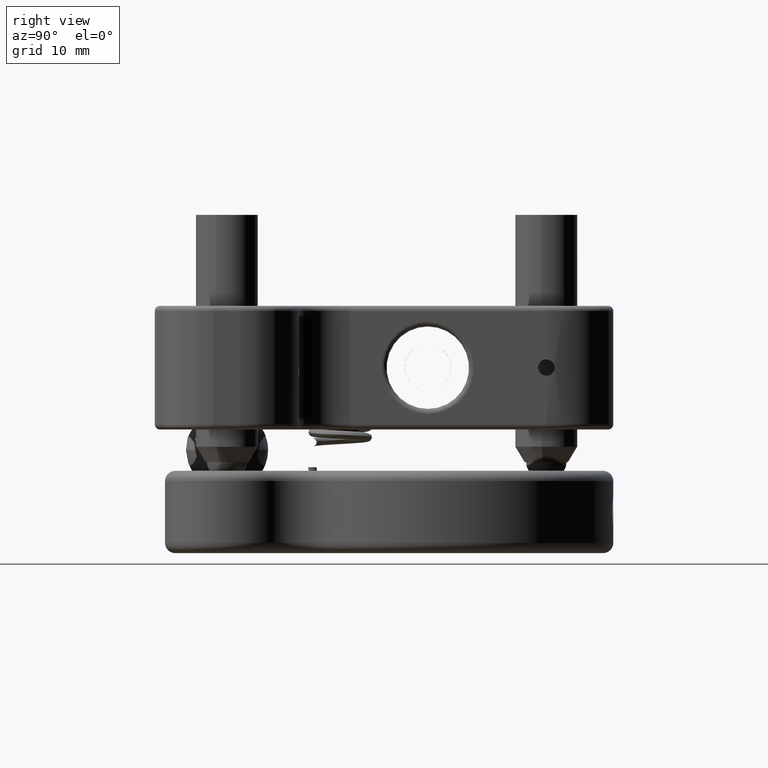
[diagram: clean part render]
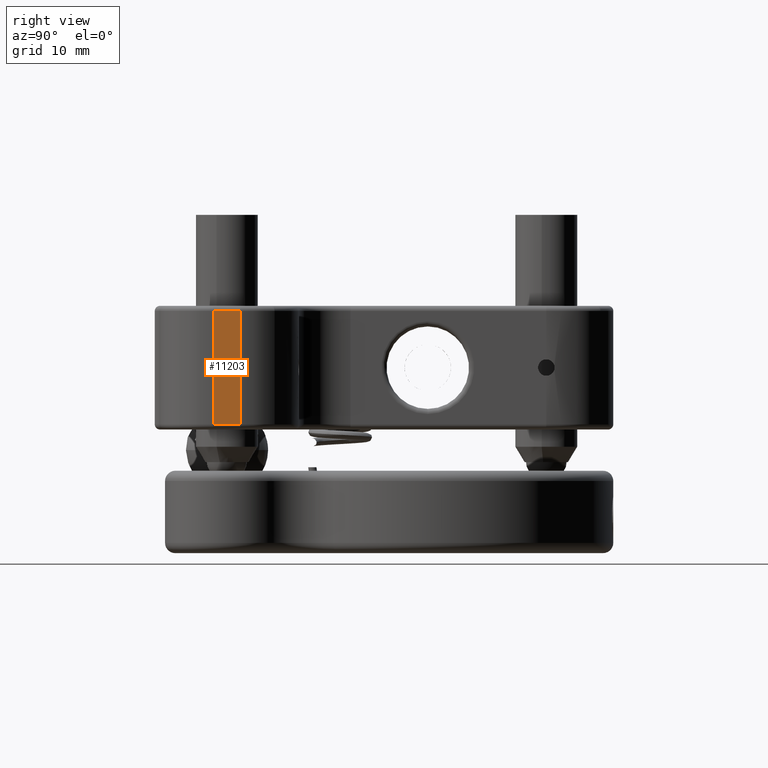
[diagram: same view with one face highlighted and labeled with its STEP entity id]
A machine part, right view. The second image highlights one B-rep face of the part: STEP entity #11203.
In plain terms, the highlighted planar face has unit normal (1, 0, -0).
Its self-contained STEP definition (entity closure, byte-faithful):
#1504 = ORIENTED_EDGE ( 'NONE', *, *, #21706, .T. ) ;
#1994 = VERTEX_POINT ( 'NONE', #2297 ) ;
#2297 = CARTESIAN_POINT ( 'NONE',  ( 37.50000000000002100, -1.322875655532280000, 5.500000000000000000 ) ) ;
#2497 = VERTEX_POINT ( 'NONE', #5971 ) ;
#3554 = VECTOR ( 'NONE', #4138, 1000.000000000000000 ) ;
#3776 = DIRECTION ( 'NONE',  ( -1.533343436975556800E-017, 8.970190802864523500E-017, 1.000000000000000000 ) ) ;
#4138 = DIRECTION ( 'NONE',  ( 4.677906002634084900E-016, -1.000000000000000000, 4.632058481800215900E-017 ) ) ;
#4980 = VERTEX_POINT ( 'NONE', #17656 ) ;
#4989 = EDGE_LOOP ( 'NONE', ( #1504, #21674, #6688, #14737 ) ) ;
#5324 = DIRECTION ( 'NONE',  ( 1.533343436975556800E-017, -8.970190802864523500E-017, -1.000000000000000000 ) ) ;
#5971 = CARTESIAN_POINT ( 'NONE',  ( 37.50000000000002100, -1.322875655532280900, -5.500000000000000000 ) ) ;
#6104 = PLANE ( 'NONE',  #21384 ) ;
#6384 = FACE_OUTER_BOUND ( 'NONE', #4989, .T. ) ;
#6688 = ORIENTED_EDGE ( 'NONE', *, *, #11329, .T. ) ;
#6879 = DIRECTION ( 'NONE',  ( -4.677906002634084900E-016, 1.000000000000000000, -4.632058481800215900E-017 ) ) ;
#7260 = LINE ( 'NONE', #18965, #11785 ) ;
#7456 = CARTESIAN_POINT ( 'NONE',  ( 37.50000000000001400, 1.322875655532277800, -5.500000000000000000 ) ) ;
#7870 = CARTESIAN_POINT ( 'NONE',  ( 37.50000000000002100, -7.000000000000041700, -6.000000000000000000 ) ) ;
#8340 = VECTOR ( 'NONE', #3776, 1000.000000000000000 ) ;
#9563 = DIRECTION ( 'NONE',  ( 4.677906002634083900E-016, -1.000000000000000000, 4.632058481800215300E-017 ) ) ;
#10946 = CARTESIAN_POINT ( 'NONE',  ( 37.50000000000002100, -1.322875655532279600, 5.500000000000000000 ) ) ;
#11203 = ADVANCED_FACE ( 'NONE', ( #6384 ), #6104, .T. ) ;
#11329 = EDGE_CURVE ( 'NONE', #1994, #2497, #7260, .T. ) ;
#11785 = VECTOR ( 'NONE', #5324, 1000.000000000000000 ) ;
#11985 = CARTESIAN_POINT ( 'NONE',  ( 37.50000000000002100, -7.000000000000041700, -5.500000000000000000 ) ) ;
#12048 = EDGE_CURVE ( 'NONE', #2497, #17970, #15220, .T. ) ;
#12573 = LINE ( 'NONE', #10946, #3554 ) ;
#12870 = LINE ( 'NONE', #17328, #8340 ) ;
#14671 = VECTOR ( 'NONE', #6879, 1000.000000000000000 ) ;
#14737 = ORIENTED_EDGE ( 'NONE', *, *, #12048, .T. ) ;
#15220 = LINE ( 'NONE', #11985, #14671 ) ;
#17328 = CARTESIAN_POINT ( 'NONE',  ( 37.50000000000001400, 1.322875655532278700, 6.000000000000000000 ) ) ;
#17656 = CARTESIAN_POINT ( 'NONE',  ( 37.50000000000001400, 1.322875655532278700, 5.500000000000000000 ) ) ;
#17970 = VERTEX_POINT ( 'NONE', #7456 ) ;
#18965 = CARTESIAN_POINT ( 'NONE',  ( 37.50000000000002100, -1.322875655532280900, -6.000000000000000000 ) ) ;
#19734 = DIRECTION ( 'NONE',  ( 1.000000000000000000, 4.677906002634083900E-016, -2.758132413222509400E-032 ) ) ;
#21384 = AXIS2_PLACEMENT_3D ( 'NONE', #7870, #19734, #9563 ) ;
#21674 = ORIENTED_EDGE ( 'NONE', *, *, #21899, .T. ) ;
#21706 = EDGE_CURVE ( 'NONE', #17970, #4980, #12870, .T. ) ;
#21899 = EDGE_CURVE ( 'NONE', #4980, #1994, #12573, .T. ) ;